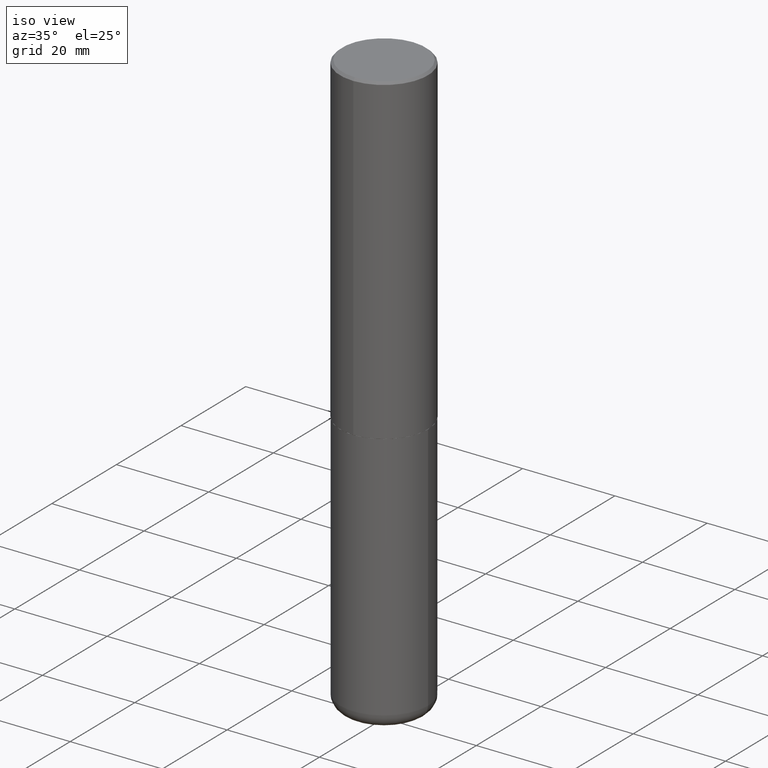
[diagram: clean part render]
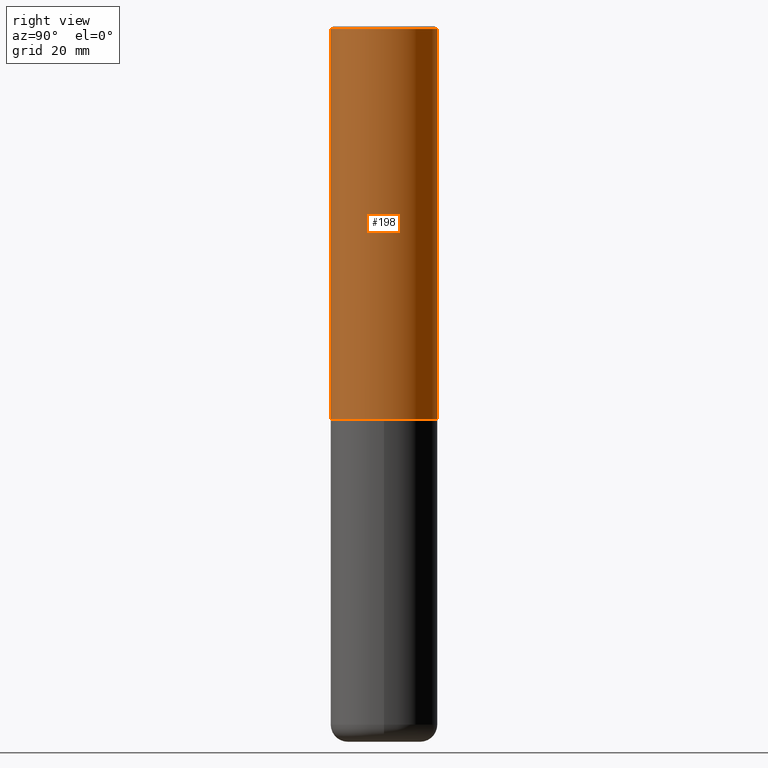
[diagram: tour spotlight — one face highlighted and labeled with its STEP entity id]
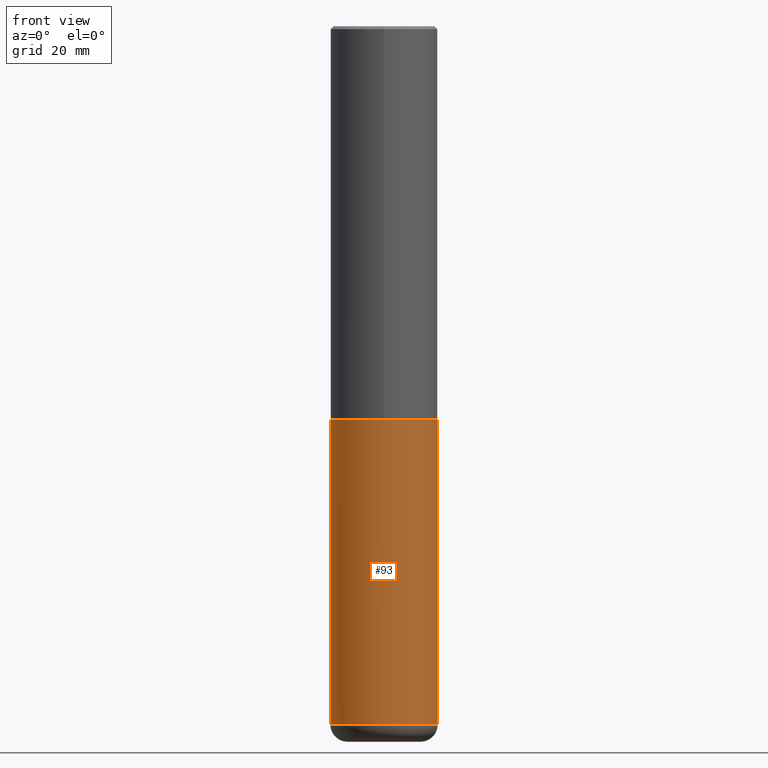
[diagram: tour spotlight — one face highlighted and labeled with its STEP entity id]
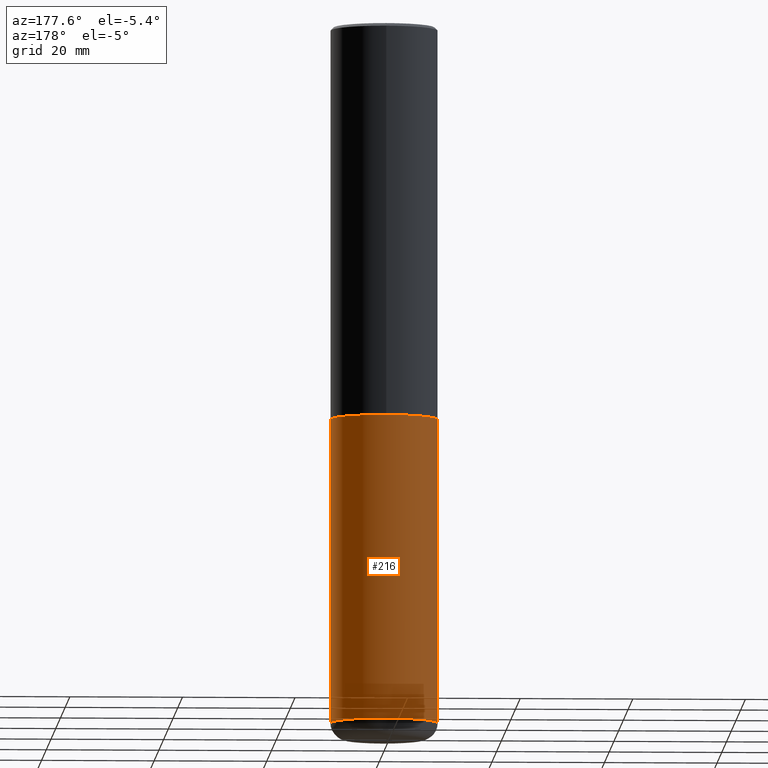
[diagram: tour spotlight — one face highlighted and labeled with its STEP entity id]
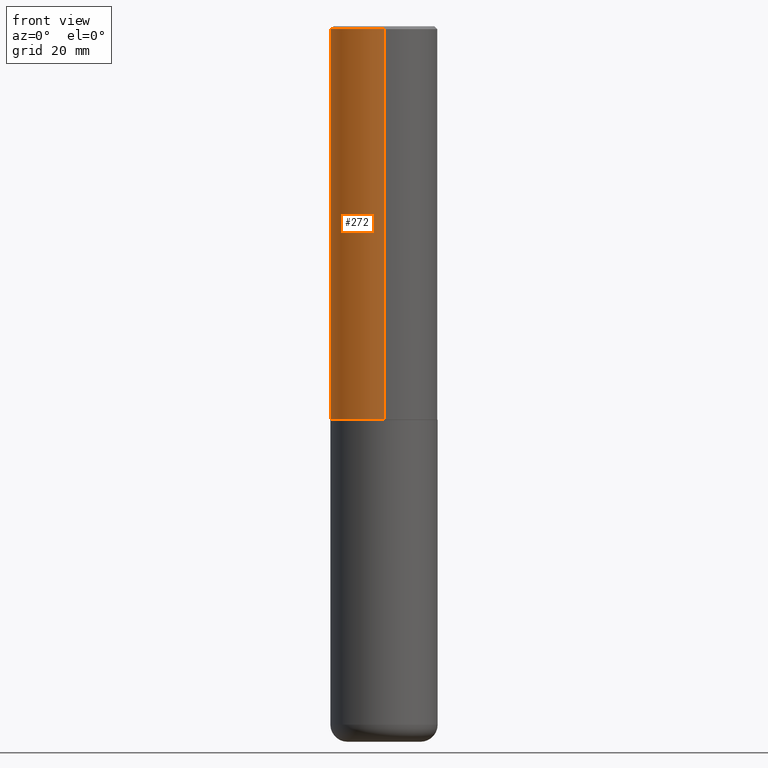
[diagram: tour spotlight — one face highlighted and labeled with its STEP entity id]
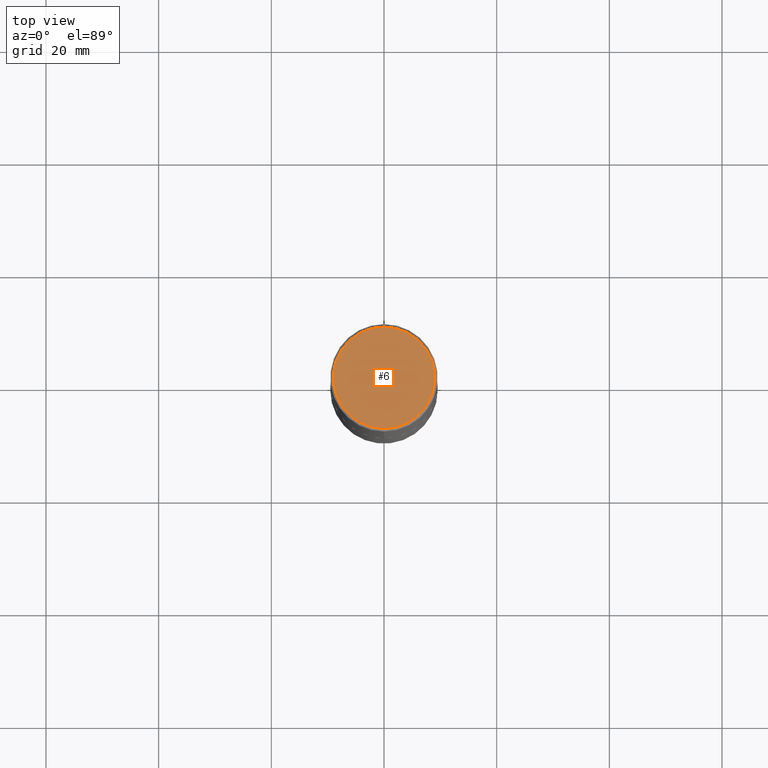
[diagram: tour spotlight — one face highlighted and labeled with its STEP entity id]
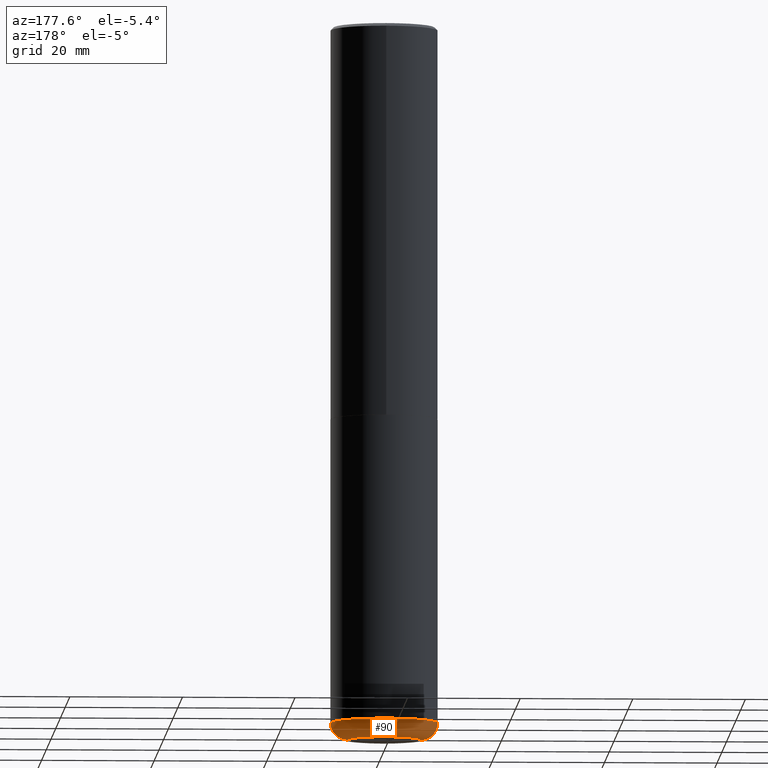
[diagram: tour spotlight — one face highlighted and labeled with its STEP entity id]
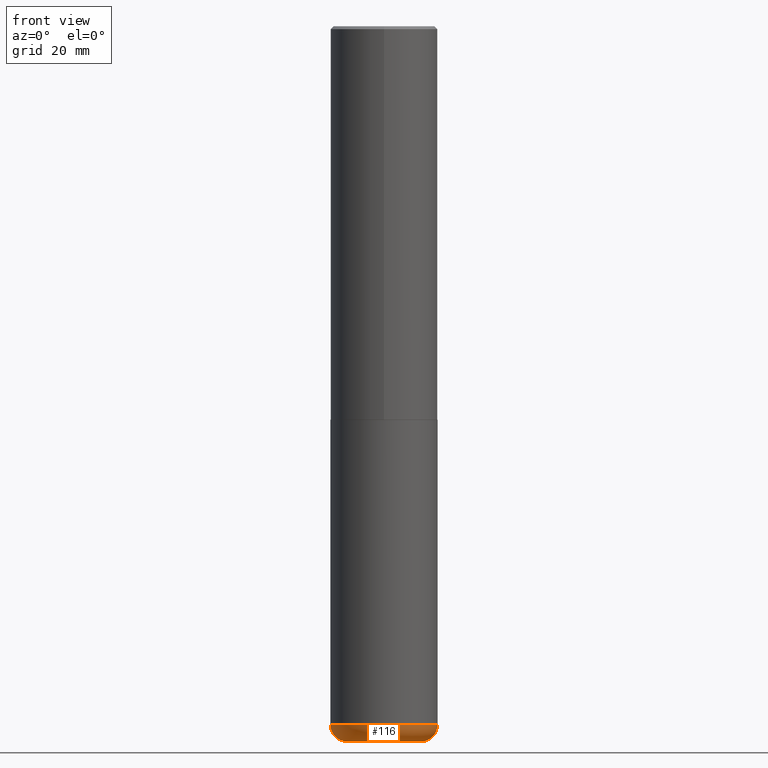
[diagram: tour spotlight — one face highlighted and labeled with its STEP entity id]
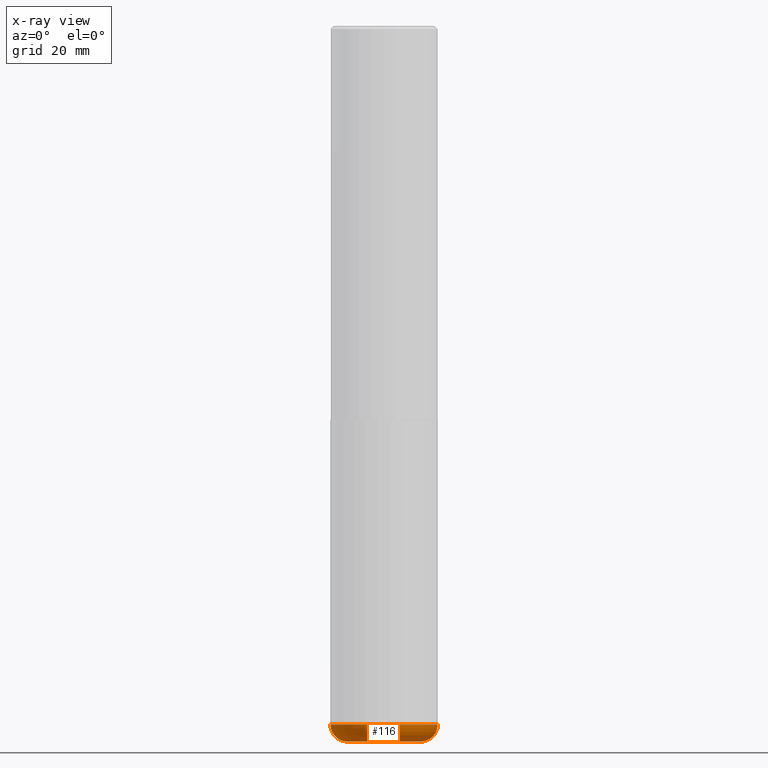
[diagram: x-ray of the same camera — body ghosted, this tour face saturated]
A machine part: a face-by-face anatomy tour. The part has 14 B-rep faces; the first image is the clean iso view, then the 7 largest visible faces are spotlighted one at a time (largest first), each with its STEP entity span.

Face 1 — right view, entity #198. In plain terms, the highlighted cylindrical surface (partial cylindrical patch) has radius 9.525 mm, axis along (-0, 0, 1).
Definition (entity closure, byte-faithful):
#17 = ORIENTED_EDGE ( 'NONE', *, *, #222, .T. ) ;
#50 = VECTOR ( 'NONE', #194, 39.37007874015748143 ) ;
#58 = ORIENTED_EDGE ( 'NONE', *, *, #390, .F. ) ;
#62 = ORIENTED_EDGE ( 'NONE', *, *, #231, .F. ) ;
#67 = CYLINDRICAL_SURFACE ( 'NONE', #167, 0.3750000000000002220 ) ;
#69 = CARTESIAN_POINT ( 'NONE',  ( -2.618611004132351594E-15, -0.3750000000000002220, 1.308998548422625521E-15 ) ) ;
#70 = FACE_OUTER_BOUND ( 'NONE', #267, .T. ) ;
#102 = CARTESIAN_POINT ( 'NONE',  ( 2.664535259100376880E-15, 0.3750000000000002220, -1.308998548422625521E-15 ) ) ;
#104 = DIRECTION ( 'NONE',  ( -2.446040391741596606E-29, 3.490662795793665557E-15, 1.000000000000000000 ) ) ;
#105 = LINE ( 'NONE', #102, #50 ) ;
#107 = VERTEX_POINT ( 'NONE', #387 ) ;
#133 = CARTESIAN_POINT ( 'NONE',  ( 2.618611004132350411E-15, 0.3749999999999999445, -0.02000000000000139513 ) ) ;
#144 = CIRCLE ( 'NONE', #165, 0.3750000000000003886 ) ;
#150 = DIRECTION ( 'NONE',  ( -6.982962677686265922E-15, -1.000000000000000000, 2.913971193241877611E-15 ) ) ;
#156 = DIRECTION ( 'NONE',  ( -6.982962677686266711E-15, -1.000000000000000000, 3.490662795793665951E-15 ) ) ;
#158 = CARTESIAN_POINT ( 'NONE',  ( 2.664535259100411196E-15, 0.3749999999999907296, -2.749000000000000998 ) ) ;
#165 = AXIS2_PLACEMENT_3D ( 'NONE', #279, #319, #150 ) ;
#167 = AXIS2_PLACEMENT_3D ( 'NONE', #244, #187, #156 ) ;
#187 = DIRECTION ( 'NONE',  ( -2.446040391741596606E-29, 3.490662795793665557E-15, 1.000000000000000000 ) ) ;
#194 = DIRECTION ( 'NONE',  ( -2.446040391741596606E-29, 3.490662795793665557E-15, 1.000000000000000000 ) ) ;
#198 = ADVANCED_FACE ( 'NONE', ( #70 ), #67, .T. ) ;
#222 = EDGE_CURVE ( 'NONE', #107, #268, #144, .T. ) ;
#228 = DIRECTION ( 'NONE',  ( -6.982962677686265922E-15, -1.000000000000000000, 3.494488891895536035E-15 ) ) ;
#231 = EDGE_CURVE ( 'NONE', #107, #306, #350, .T. ) ;
#234 = ORIENTED_EDGE ( 'NONE', *, *, #333, .T. ) ;
#242 = DIRECTION ( 'NONE',  ( -2.446040391741596606E-29, 3.490662795793665557E-15, 1.000000000000000000 ) ) ;
#244 = CARTESIAN_POINT ( 'NONE',  ( 0.000000000000000000, 0.000000000000000000, 0.000000000000000000 ) ) ;
#250 = CIRCLE ( 'NONE', #389, 0.3750000000000000555 ) ;
#267 = EDGE_LOOP ( 'NONE', ( #17, #234, #58, #62 ) ) ;
#268 = VERTEX_POINT ( 'NONE', #158 ) ;
#279 = CARTESIAN_POINT ( 'NONE',  ( 6.724165036897648492E-29, -9.595832025636787455E-15, -2.749000000000000110 ) ) ;
#302 = VERTEX_POINT ( 'NONE', #133 ) ;
#306 = VERTEX_POINT ( 'NONE', #394 ) ;
#319 = DIRECTION ( 'NONE',  ( -2.446040391741596606E-29, 3.490662795793665557E-15, 1.000000000000000000 ) ) ;
#333 = EDGE_CURVE ( 'NONE', #268, #302, #105, .T. ) ;
#350 = LINE ( 'NONE', #69, #410 ) ;
#355 = CARTESIAN_POINT ( 'NONE',  ( 4.892080783483214581E-31, -6.981325591587361238E-17, -0.02000000000000008715 ) ) ;
#387 = CARTESIAN_POINT ( 'NONE',  ( -2.618611004132284935E-15, -0.3750000000000099920, -2.748999999999999222 ) ) ;
#389 = AXIS2_PLACEMENT_3D ( 'NONE', #355, #104, #228 ) ;
#390 = EDGE_CURVE ( 'NONE', #306, #302, #250, .T. ) ;
#394 = CARTESIAN_POINT ( 'NONE',  ( -2.572686749164323547E-15, -0.3750000000000001110, -0.01999999999999877570 ) ) ;
#410 = VECTOR ( 'NONE', #242, 39.37007874015748143 ) ;

Face 2 — front view, entity #93. In plain terms, the highlighted cylindrical surface (partial cylindrical patch) has radius 9.525 mm, axis along (-0, 0, 1).
Definition (entity closure, byte-faithful):
#7 = LINE ( 'NONE', #128, #351 ) ;
#22 = ORIENTED_EDGE ( 'NONE', *, *, #309, .T. ) ;
#24 = VERTEX_POINT ( 'NONE', #54 ) ;
#33 = DIRECTION ( 'NONE',  ( -2.445468806185136877E-29, 3.491481338843145188E-15, 1.000000000000000000 ) ) ;
#38 = DIRECTION ( 'NONE',  ( -2.445468806185136877E-29, 3.491481338843145188E-15, 1.000000000000000000 ) ) ;
#54 = CARTESIAN_POINT ( 'NONE',  ( 0.3749999999999999445, -1.965703993768690011E-14, -4.880000000000000782 ) ) ;
#57 = EDGE_CURVE ( 'NONE', #311, #303, #74, .T. ) ;
#61 = CARTESIAN_POINT ( 'NONE',  ( -0.3749999999999999445, -1.437389367445417440E-14, -4.880000000000000782 ) ) ;
#74 = CIRCLE ( 'NONE', #113, 0.3750000000000000555 ) ;
#80 = EDGE_LOOP ( 'NONE', ( #261, #22, #117, #120 ) ) ;
#93 = ADVANCED_FACE ( 'NONE', ( #265 ), #343, .T. ) ;
#94 = LINE ( 'NONE', #217, #294 ) ;
#112 = VERTEX_POINT ( 'NONE', #61 ) ;
#113 = AXIS2_PLACEMENT_3D ( 'NONE', #207, #332, #339 ) ;
#117 = ORIENTED_EDGE ( 'NONE', *, *, #203, .T. ) ;
#120 = ORIENTED_EDGE ( 'NONE', *, *, #57, .F. ) ;
#128 = CARTESIAN_POINT ( 'NONE',  ( 0.3750000000000000555, -2.618611004132350016E-15, 1.828566290923476203E-29 ) ) ;
#138 = DIRECTION ( 'NONE',  ( -2.445468806185136597E-29, 3.491481338843145583E-15, 1.000000000000000000 ) ) ;
#185 = DIRECTION ( 'NONE',  ( 1.000000000000000000, -6.982962677686265922E-15, 4.876176775795935793E-29 ) ) ;
#201 = AXIS2_PLACEMENT_3D ( 'NONE', #253, #138, #230 ) ;
#203 = EDGE_CURVE ( 'NONE', #24, #303, #7, .T. ) ;
#207 = CARTESIAN_POINT ( 'NONE',  ( 6.725039217009124520E-29, -9.601573681818649859E-15, -2.750000000000000000 ) ) ;
#217 = CARTESIAN_POINT ( 'NONE',  ( -0.3750000000000000555, 2.664535259100376091E-15, -1.844600658845589598E-29 ) ) ;
#226 = CIRCLE ( 'NONE', #201, 0.3750000000000000555 ) ;
#230 = DIRECTION ( 'NONE',  ( 1.000000000000000000, -6.982962677686261189E-15, 0.000000000000000000 ) ) ;
#238 = EDGE_CURVE ( 'NONE', #112, #311, #94, .T. ) ;
#253 = CARTESIAN_POINT ( 'NONE',  ( 1.193388777418346668E-28, -1.703842893355455010E-14, -4.880000000000000782 ) ) ;
#261 = ORIENTED_EDGE ( 'NONE', *, *, #238, .F. ) ;
#265 = FACE_OUTER_BOUND ( 'NONE', #80, .T. ) ;
#273 = DIRECTION ( 'NONE',  ( -2.445468806185136597E-29, 3.491481338843145583E-15, 1.000000000000000000 ) ) ;
#284 = CARTESIAN_POINT ( 'NONE',  ( 0.3750000000000000555, -1.222018468595100145E-14, -2.750000000000000000 ) ) ;
#294 = VECTOR ( 'NONE', #33, 39.37007874015748143 ) ;
#303 = VERTEX_POINT ( 'NONE', #284 ) ;
#309 = EDGE_CURVE ( 'NONE', #112, #24, #226, .T. ) ;
#311 = VERTEX_POINT ( 'NONE', #391 ) ;
#332 = DIRECTION ( 'NONE',  ( -2.445468806185136597E-29, 3.491481338843145583E-15, 1.000000000000000000 ) ) ;
#339 = DIRECTION ( 'NONE',  ( 1.000000000000000000, -6.982962677686266711E-15, 0.000000000000000000 ) ) ;
#343 = CYLINDRICAL_SURFACE ( 'NONE', #372, 0.3750000000000000555 ) ;
#347 = CARTESIAN_POINT ( 'NONE',  ( 0.000000000000000000, 0.000000000000000000, 0.000000000000000000 ) ) ;
#351 = VECTOR ( 'NONE', #38, 39.37007874015748143 ) ;
#372 = AXIS2_PLACEMENT_3D ( 'NONE', #347, #273, #185 ) ;
#391 = CARTESIAN_POINT ( 'NONE',  ( -0.3750000000000000555, -1.065546604858622507E-14, -2.750000000000000000 ) ) ;

Face 3 — auxiliary view, entity #216. In plain terms, the highlighted cylindrical surface (partial cylindrical patch) has radius 9.525 mm, axis along (-0, 0, 1).
Definition (entity closure, byte-faithful):
#7 = LINE ( 'NONE', #128, #351 ) ;
#19 = EDGE_CURVE ( 'NONE', #303, #311, #91, .T. ) ;
#24 = VERTEX_POINT ( 'NONE', #54 ) ;
#29 = EDGE_LOOP ( 'NONE', ( #300, #31, #208, #379 ) ) ;
#31 = ORIENTED_EDGE ( 'NONE', *, *, #238, .T. ) ;
#33 = DIRECTION ( 'NONE',  ( -2.445468806185136877E-29, 3.491481338843145188E-15, 1.000000000000000000 ) ) ;
#38 = DIRECTION ( 'NONE',  ( -2.445468806185136877E-29, 3.491481338843145188E-15, 1.000000000000000000 ) ) ;
#52 = DIRECTION ( 'NONE',  ( -2.445468806185136597E-29, 3.491481338843145583E-15, 1.000000000000000000 ) ) ;
#54 = CARTESIAN_POINT ( 'NONE',  ( 0.3749999999999999445, -1.965703993768690011E-14, -4.880000000000000782 ) ) ;
#61 = CARTESIAN_POINT ( 'NONE',  ( -0.3749999999999999445, -1.437389367445417440E-14, -4.880000000000000782 ) ) ;
#79 = EDGE_CURVE ( 'NONE', #24, #112, #388, .T. ) ;
#83 = AXIS2_PLACEMENT_3D ( 'NONE', #214, #313, #92 ) ;
#91 = CIRCLE ( 'NONE', #304, 0.3750000000000000555 ) ;
#92 = DIRECTION ( 'NONE',  ( 1.000000000000000000, -6.982962677686265922E-15, 4.876176775795935793E-29 ) ) ;
#94 = LINE ( 'NONE', #217, #294 ) ;
#112 = VERTEX_POINT ( 'NONE', #61 ) ;
#128 = CARTESIAN_POINT ( 'NONE',  ( 0.3750000000000000555, -2.618611004132350016E-15, 1.828566290923476203E-29 ) ) ;
#148 = DIRECTION ( 'NONE',  ( -2.445468806185136597E-29, 3.491481338843145583E-15, 1.000000000000000000 ) ) ;
#179 = CARTESIAN_POINT ( 'NONE',  ( 1.193388777418346668E-28, -1.703842893355455010E-14, -4.880000000000000782 ) ) ;
#190 = FACE_OUTER_BOUND ( 'NONE', #29, .T. ) ;
#203 = EDGE_CURVE ( 'NONE', #24, #303, #7, .T. ) ;
#208 = ORIENTED_EDGE ( 'NONE', *, *, #19, .F. ) ;
#214 = CARTESIAN_POINT ( 'NONE',  ( 0.000000000000000000, 0.000000000000000000, 0.000000000000000000 ) ) ;
#216 = ADVANCED_FACE ( 'NONE', ( #190 ), #381, .T. ) ;
#217 = CARTESIAN_POINT ( 'NONE',  ( -0.3750000000000000555, 2.664535259100376091E-15, -1.844600658845589598E-29 ) ) ;
#233 = DIRECTION ( 'NONE',  ( 1.000000000000000000, -6.982962677686266711E-15, 0.000000000000000000 ) ) ;
#238 = EDGE_CURVE ( 'NONE', #112, #311, #94, .T. ) ;
#240 = DIRECTION ( 'NONE',  ( 1.000000000000000000, -6.982962677686261189E-15, 0.000000000000000000 ) ) ;
#266 = AXIS2_PLACEMENT_3D ( 'NONE', #179, #52, #240 ) ;
#284 = CARTESIAN_POINT ( 'NONE',  ( 0.3750000000000000555, -1.222018468595100145E-14, -2.750000000000000000 ) ) ;
#294 = VECTOR ( 'NONE', #33, 39.37007874015748143 ) ;
#296 = CARTESIAN_POINT ( 'NONE',  ( 6.725039217009124520E-29, -9.601573681818649859E-15, -2.750000000000000000 ) ) ;
#300 = ORIENTED_EDGE ( 'NONE', *, *, #79, .T. ) ;
#303 = VERTEX_POINT ( 'NONE', #284 ) ;
#304 = AXIS2_PLACEMENT_3D ( 'NONE', #296, #148, #233 ) ;
#311 = VERTEX_POINT ( 'NONE', #391 ) ;
#313 = DIRECTION ( 'NONE',  ( -2.445468806185136597E-29, 3.491481338843145583E-15, 1.000000000000000000 ) ) ;
#351 = VECTOR ( 'NONE', #38, 39.37007874015748143 ) ;
#379 = ORIENTED_EDGE ( 'NONE', *, *, #203, .F. ) ;
#381 = CYLINDRICAL_SURFACE ( 'NONE', #83, 0.3750000000000000555 ) ;
#388 = CIRCLE ( 'NONE', #266, 0.3750000000000000555 ) ;
#391 = CARTESIAN_POINT ( 'NONE',  ( -0.3750000000000000555, -1.065546604858622507E-14, -2.750000000000000000 ) ) ;

Face 4 — front view, entity #272. In plain terms, the highlighted cylindrical surface (partial cylindrical patch) has radius 9.525 mm, axis along (-0, 0, 1).
Definition (entity closure, byte-faithful):
#16 = DIRECTION ( 'NONE',  ( -2.446040391741596606E-29, 3.490662795793665557E-15, 1.000000000000000000 ) ) ;
#32 = DIRECTION ( 'NONE',  ( -6.982962677686265922E-15, -1.000000000000000000, 2.913971193241877611E-15 ) ) ;
#50 = VECTOR ( 'NONE', #194, 39.37007874015748143 ) ;
#69 = CARTESIAN_POINT ( 'NONE',  ( -2.618611004132351594E-15, -0.3750000000000002220, 1.308998548422625521E-15 ) ) ;
#85 = ORIENTED_EDGE ( 'NONE', *, *, #164, .T. ) ;
#98 = CIRCLE ( 'NONE', #212, 0.3750000000000000555 ) ;
#102 = CARTESIAN_POINT ( 'NONE',  ( 2.664535259100376880E-15, 0.3750000000000002220, -1.308998548422625521E-15 ) ) ;
#105 = LINE ( 'NONE', #102, #50 ) ;
#106 = DIRECTION ( 'NONE',  ( -2.446040391741596606E-29, 3.490662795793665557E-15, 1.000000000000000000 ) ) ;
#107 = VERTEX_POINT ( 'NONE', #387 ) ;
#109 = ORIENTED_EDGE ( 'NONE', *, *, #418, .F. ) ;
#111 = ORIENTED_EDGE ( 'NONE', *, *, #333, .F. ) ;
#122 = AXIS2_PLACEMENT_3D ( 'NONE', #287, #106, #324 ) ;
#130 = CARTESIAN_POINT ( 'NONE',  ( 6.724165036897648492E-29, -9.595832025636787455E-15, -2.749000000000000110 ) ) ;
#133 = CARTESIAN_POINT ( 'NONE',  ( 2.618611004132350411E-15, 0.3749999999999999445, -0.02000000000000139513 ) ) ;
#141 = DIRECTION ( 'NONE',  ( -6.982962677686265922E-15, -1.000000000000000000, 3.494488891895536035E-15 ) ) ;
#146 = ORIENTED_EDGE ( 'NONE', *, *, #231, .T. ) ;
#158 = CARTESIAN_POINT ( 'NONE',  ( 2.664535259100411196E-15, 0.3749999999999907296, -2.749000000000000998 ) ) ;
#164 = EDGE_CURVE ( 'NONE', #268, #107, #365, .T. ) ;
#194 = DIRECTION ( 'NONE',  ( -2.446040391741596606E-29, 3.490662795793665557E-15, 1.000000000000000000 ) ) ;
#212 = AXIS2_PLACEMENT_3D ( 'NONE', #290, #16, #141 ) ;
#231 = EDGE_CURVE ( 'NONE', #107, #306, #350, .T. ) ;
#232 = AXIS2_PLACEMENT_3D ( 'NONE', #130, #275, #32 ) ;
#242 = DIRECTION ( 'NONE',  ( -2.446040391741596606E-29, 3.490662795793665557E-15, 1.000000000000000000 ) ) ;
#254 = CYLINDRICAL_SURFACE ( 'NONE', #122, 0.3750000000000002220 ) ;
#268 = VERTEX_POINT ( 'NONE', #158 ) ;
#272 = ADVANCED_FACE ( 'NONE', ( #401 ), #254, .T. ) ;
#275 = DIRECTION ( 'NONE',  ( -2.446040391741596606E-29, 3.490662795793665557E-15, 1.000000000000000000 ) ) ;
#287 = CARTESIAN_POINT ( 'NONE',  ( 0.000000000000000000, 0.000000000000000000, 0.000000000000000000 ) ) ;
#290 = CARTESIAN_POINT ( 'NONE',  ( 4.892080783483214581E-31, -6.981325591587361238E-17, -0.02000000000000008715 ) ) ;
#302 = VERTEX_POINT ( 'NONE', #133 ) ;
#306 = VERTEX_POINT ( 'NONE', #394 ) ;
#324 = DIRECTION ( 'NONE',  ( -6.982962677686266711E-15, -1.000000000000000000, 3.490662795793665951E-15 ) ) ;
#333 = EDGE_CURVE ( 'NONE', #268, #302, #105, .T. ) ;
#350 = LINE ( 'NONE', #69, #410 ) ;
#365 = CIRCLE ( 'NONE', #232, 0.3750000000000003886 ) ;
#373 = EDGE_LOOP ( 'NONE', ( #111, #85, #146, #109 ) ) ;
#387 = CARTESIAN_POINT ( 'NONE',  ( -2.618611004132284935E-15, -0.3750000000000099920, -2.748999999999999222 ) ) ;
#394 = CARTESIAN_POINT ( 'NONE',  ( -2.572686749164323547E-15, -0.3750000000000001110, -0.01999999999999877570 ) ) ;
#401 = FACE_OUTER_BOUND ( 'NONE', #373, .T. ) ;
#410 = VECTOR ( 'NONE', #242, 39.37007874015748143 ) ;
#418 = EDGE_CURVE ( 'NONE', #302, #306, #98, .T. ) ;

Face 5 — top view, entity #6. In plain terms, the highlighted planar face has unit normal (0, -0, -1).
Definition (entity closure, byte-faithful):
#6 = ADVANCED_FACE ( 'NONE', ( #86 ), #82, .F. ) ;
#56 = DIRECTION ( 'NONE',  ( 6.982962677686265922E-15, 1.000000000000000000, -3.490662795793665557E-15 ) ) ;
#59 = EDGE_LOOP ( 'NONE', ( #402, #142 ) ) ;
#64 = CARTESIAN_POINT ( 'NONE',  ( -1.141397163745304909E-45, 1.628849886601155835E-31, 4.666305460853910467E-17 ) ) ;
#82 = PLANE ( 'NONE',  #192 ) ;
#86 = FACE_OUTER_BOUND ( 'NONE', #59, .T. ) ;
#139 = AXIS2_PLACEMENT_3D ( 'NONE', #64, #378, #312 ) ;
#142 = ORIENTED_EDGE ( 'NONE', *, *, #236, .T. ) ;
#153 = CARTESIAN_POINT ( 'NONE',  ( 2.548781377355487113E-15, 0.3549999999999999822, -1.192522237898212341E-15 ) ) ;
#192 = AXIS2_PLACEMENT_3D ( 'NONE', #205, #337, #56 ) ;
#205 = CARTESIAN_POINT ( 'NONE',  ( 2.478951750578624209E-15, 0.3549999999999999822, -1.215853765202481601E-15 ) ) ;
#210 = DIRECTION ( 'NONE',  ( -2.446040391741596606E-29, 3.490662795793665557E-15, 1.000000000000000000 ) ) ;
#227 = EDGE_CURVE ( 'NONE', #259, #308, #314, .T. ) ;
#236 = EDGE_CURVE ( 'NONE', #308, #259, #245, .T. ) ;
#245 = CIRCLE ( 'NONE', #139, 0.3549999999999999822 ) ;
#251 = CARTESIAN_POINT ( 'NONE',  ( -2.504081769186608216E-15, -0.3549999999999999822, 1.285848347115290366E-15 ) ) ;
#259 = VERTEX_POINT ( 'NONE', #153 ) ;
#269 = CARTESIAN_POINT ( 'NONE',  ( -1.141397163745304909E-45, 1.628849886601155835E-31, 4.666305460853910467E-17 ) ) ;
#308 = VERTEX_POINT ( 'NONE', #251 ) ;
#312 = DIRECTION ( 'NONE',  ( -6.982962677686265922E-15, -1.000000000000000000, 3.490662795793665557E-15 ) ) ;
#314 = CIRCLE ( 'NONE', #380, 0.3549999999999999822 ) ;
#337 = DIRECTION ( 'NONE',  ( 2.446040391741596045E-29, -3.490662795793665557E-15, -1.000000000000000000 ) ) ;
#378 = DIRECTION ( 'NONE',  ( -2.446040391741596606E-29, 3.490662795793665557E-15, 1.000000000000000000 ) ) ;
#380 = AXIS2_PLACEMENT_3D ( 'NONE', #269, #210, #386 ) ;
#386 = DIRECTION ( 'NONE',  ( -6.982962677686265922E-15, -1.000000000000000000, 3.490662795793665557E-15 ) ) ;
#402 = ORIENTED_EDGE ( 'NONE', *, *, #227, .T. ) ;

Face 6 — auxiliary view, entity #90. In plain terms, the highlighted toroidal blend (fillet) surface has major radius 6.477 mm and minor (blend) radius 3.048 mm.
Definition (entity closure, byte-faithful):
#3 = CIRCLE ( 'NONE', #49, 0.1199999999999999539 ) ;
#8 = DIRECTION ( 'NONE',  ( -2.445468806185136597E-29, 3.491481338843145583E-15, 1.000000000000000000 ) ) ;
#13 = CARTESIAN_POINT ( 'NONE',  ( -0.2550000000000000044, -1.500970819624082478E-14, -5.000000000000000000 ) ) ;
#24 = VERTEX_POINT ( 'NONE', #54 ) ;
#34 = CIRCLE ( 'NONE', #131, 0.1199999999999999539 ) ;
#49 = AXIS2_PLACEMENT_3D ( 'NONE', #326, #257, #359 ) ;
#52 = DIRECTION ( 'NONE',  ( -2.445468806185136597E-29, 3.491481338843145583E-15, 1.000000000000000000 ) ) ;
#54 = CARTESIAN_POINT ( 'NONE',  ( 0.3749999999999999445, -1.965703993768690011E-14, -4.880000000000000782 ) ) ;
#61 = CARTESIAN_POINT ( 'NONE',  ( -0.3749999999999999445, -1.437389367445417440E-14, -4.880000000000000782 ) ) ;
#79 = EDGE_CURVE ( 'NONE', #24, #112, #388, .T. ) ;
#88 = DIRECTION ( 'NONE',  ( -6.982962677686266711E-15, -1.000000000000000000, 3.491481338843145583E-15 ) ) ;
#90 = ADVANCED_FACE ( 'NONE', ( #293 ), #352, .T. ) ;
#108 = AXIS2_PLACEMENT_3D ( 'NONE', #375, #8, #247 ) ;
#112 = VERTEX_POINT ( 'NONE', #61 ) ;
#131 = AXIS2_PLACEMENT_3D ( 'NONE', #189, #88, #154 ) ;
#132 = CIRCLE ( 'NONE', #336, 0.2550000000000000044 ) ;
#136 = EDGE_CURVE ( 'NONE', #264, #24, #34, .T. ) ;
#149 = ORIENTED_EDGE ( 'NONE', *, *, #79, .F. ) ;
#154 = DIRECTION ( 'NONE',  ( 1.000000000000000000, -6.982962677686270655E-15, 0.000000000000000000 ) ) ;
#179 = CARTESIAN_POINT ( 'NONE',  ( 1.193388777418346668E-28, -1.703842893355455010E-14, -4.880000000000000782 ) ) ;
#189 = CARTESIAN_POINT ( 'NONE',  ( 0.2550000000000000044, -1.881908441636454685E-14, -4.880000000000000782 ) ) ;
#211 = ORIENTED_EDGE ( 'NONE', *, *, #374, .T. ) ;
#223 = CARTESIAN_POINT ( 'NONE',  ( 1.222734403092568523E-28, -1.745740669421572989E-14, -5.000000000000000000 ) ) ;
#237 = ORIENTED_EDGE ( 'NONE', *, *, #136, .F. ) ;
#240 = DIRECTION ( 'NONE',  ( 1.000000000000000000, -6.982962677686261189E-15, 0.000000000000000000 ) ) ;
#247 = DIRECTION ( 'NONE',  ( 1.000000000000000000, -6.982962677686263555E-15, 4.883557194083111219E-29 ) ) ;
#257 = DIRECTION ( 'NONE',  ( 7.105427357601001859E-15, 1.000000000000000000, -3.491481338843145583E-15 ) ) ;
#263 = VERTEX_POINT ( 'NONE', #13 ) ;
#264 = VERTEX_POINT ( 'NONE', #280 ) ;
#266 = AXIS2_PLACEMENT_3D ( 'NONE', #179, #52, #240 ) ;
#280 = CARTESIAN_POINT ( 'NONE',  ( 0.2550000000000000044, -1.923806217702572663E-14, -5.000000000000000000 ) ) ;
#286 = EDGE_CURVE ( 'NONE', #263, #112, #3, .T. ) ;
#293 = FACE_OUTER_BOUND ( 'NONE', #334, .T. ) ;
#326 = CARTESIAN_POINT ( 'NONE',  ( -0.2550000000000000044, -1.522654495736629538E-14, -4.880000000000000782 ) ) ;
#334 = EDGE_LOOP ( 'NONE', ( #211, #340, #149, #237 ) ) ;
#336 = AXIS2_PLACEMENT_3D ( 'NONE', #223, #396, #357 ) ;
#340 = ORIENTED_EDGE ( 'NONE', *, *, #286, .T. ) ;
#352 = TOROIDAL_SURFACE ( 'NONE', #108, 0.2550000000000000044, 0.1199999999999999123 ) ;
#357 = DIRECTION ( 'NONE',  ( 1.000000000000000000, -6.982962677686267499E-15, 0.000000000000000000 ) ) ;
#359 = DIRECTION ( 'NONE',  ( -1.000000000000000000, 7.105427357600993970E-15, 0.000000000000000000 ) ) ;
#374 = EDGE_CURVE ( 'NONE', #264, #263, #132, .T. ) ;
#375 = CARTESIAN_POINT ( 'NONE',  ( 1.193388777418346668E-28, -1.703842893355455010E-14, -4.880000000000000782 ) ) ;
#388 = CIRCLE ( 'NONE', #266, 0.3750000000000000555 ) ;
#396 = DIRECTION ( 'NONE',  ( -2.445468806185136597E-29, 3.491481338843145583E-15, 1.000000000000000000 ) ) ;

Face 7 — front view, entity #116. An x-ray twin of the same camera follows (body ghosted, this face saturated) — the face is partly hidden behind the body. In plain terms, the highlighted toroidal blend (fillet) surface has major radius 6.477 mm and minor (blend) radius 3.048 mm.
Definition (entity closure, byte-faithful):
#3 = CIRCLE ( 'NONE', #49, 0.1199999999999999539 ) ;
#13 = CARTESIAN_POINT ( 'NONE',  ( -0.2550000000000000044, -1.500970819624082478E-14, -5.000000000000000000 ) ) ;
#24 = VERTEX_POINT ( 'NONE', #54 ) ;
#26 = ORIENTED_EDGE ( 'NONE', *, *, #356, .T. ) ;
#27 = AXIS2_PLACEMENT_3D ( 'NONE', #416, #96, #384 ) ;
#34 = CIRCLE ( 'NONE', #131, 0.1199999999999999539 ) ;
#49 = AXIS2_PLACEMENT_3D ( 'NONE', #326, #257, #359 ) ;
#54 = CARTESIAN_POINT ( 'NONE',  ( 0.3749999999999999445, -1.965703993768690011E-14, -4.880000000000000782 ) ) ;
#61 = CARTESIAN_POINT ( 'NONE',  ( -0.3749999999999999445, -1.437389367445417440E-14, -4.880000000000000782 ) ) ;
#88 = DIRECTION ( 'NONE',  ( -6.982962677686266711E-15, -1.000000000000000000, 3.491481338843145583E-15 ) ) ;
#96 = DIRECTION ( 'NONE',  ( -2.445468806185136597E-29, 3.491481338843145583E-15, 1.000000000000000000 ) ) ;
#99 = FACE_OUTER_BOUND ( 'NONE', #184, .T. ) ;
#110 = ORIENTED_EDGE ( 'NONE', *, *, #309, .F. ) ;
#112 = VERTEX_POINT ( 'NONE', #61 ) ;
#116 = ADVANCED_FACE ( 'NONE', ( #99 ), #342, .T. ) ;
#131 = AXIS2_PLACEMENT_3D ( 'NONE', #189, #88, #154 ) ;
#136 = EDGE_CURVE ( 'NONE', #264, #24, #34, .T. ) ;
#137 = CARTESIAN_POINT ( 'NONE',  ( 1.222734403092568523E-28, -1.745740669421572989E-14, -5.000000000000000000 ) ) ;
#138 = DIRECTION ( 'NONE',  ( -2.445468806185136597E-29, 3.491481338843145583E-15, 1.000000000000000000 ) ) ;
#154 = DIRECTION ( 'NONE',  ( 1.000000000000000000, -6.982962677686270655E-15, 0.000000000000000000 ) ) ;
#160 = CIRCLE ( 'NONE', #274, 0.2550000000000000044 ) ;
#184 = EDGE_LOOP ( 'NONE', ( #241, #26, #345, #110 ) ) ;
#189 = CARTESIAN_POINT ( 'NONE',  ( 0.2550000000000000044, -1.881908441636454685E-14, -4.880000000000000782 ) ) ;
#201 = AXIS2_PLACEMENT_3D ( 'NONE', #253, #138, #230 ) ;
#226 = CIRCLE ( 'NONE', #201, 0.3750000000000000555 ) ;
#229 = DIRECTION ( 'NONE',  ( -2.445468806185136597E-29, 3.491481338843145583E-15, 1.000000000000000000 ) ) ;
#230 = DIRECTION ( 'NONE',  ( 1.000000000000000000, -6.982962677686261189E-15, 0.000000000000000000 ) ) ;
#241 = ORIENTED_EDGE ( 'NONE', *, *, #286, .F. ) ;
#253 = CARTESIAN_POINT ( 'NONE',  ( 1.193388777418346668E-28, -1.703842893355455010E-14, -4.880000000000000782 ) ) ;
#257 = DIRECTION ( 'NONE',  ( 7.105427357601001859E-15, 1.000000000000000000, -3.491481338843145583E-15 ) ) ;
#258 = DIRECTION ( 'NONE',  ( 1.000000000000000000, -6.982962677686267499E-15, 0.000000000000000000 ) ) ;
#263 = VERTEX_POINT ( 'NONE', #13 ) ;
#264 = VERTEX_POINT ( 'NONE', #280 ) ;
#274 = AXIS2_PLACEMENT_3D ( 'NONE', #137, #229, #258 ) ;
#280 = CARTESIAN_POINT ( 'NONE',  ( 0.2550000000000000044, -1.923806217702572663E-14, -5.000000000000000000 ) ) ;
#286 = EDGE_CURVE ( 'NONE', #263, #112, #3, .T. ) ;
#309 = EDGE_CURVE ( 'NONE', #112, #24, #226, .T. ) ;
#326 = CARTESIAN_POINT ( 'NONE',  ( -0.2550000000000000044, -1.522654495736629538E-14, -4.880000000000000782 ) ) ;
#342 = TOROIDAL_SURFACE ( 'NONE', #27, 0.2550000000000000044, 0.1199999999999999123 ) ;
#345 = ORIENTED_EDGE ( 'NONE', *, *, #136, .T. ) ;
#356 = EDGE_CURVE ( 'NONE', #263, #264, #160, .T. ) ;
#359 = DIRECTION ( 'NONE',  ( -1.000000000000000000, 7.105427357600993970E-15, 0.000000000000000000 ) ) ;
#384 = DIRECTION ( 'NONE',  ( 1.000000000000000000, -6.982962677686263555E-15, 4.883557194083111219E-29 ) ) ;
#416 = CARTESIAN_POINT ( 'NONE',  ( 1.193388777418346668E-28, -1.703842893355455010E-14, -4.880000000000000782 ) ) ;